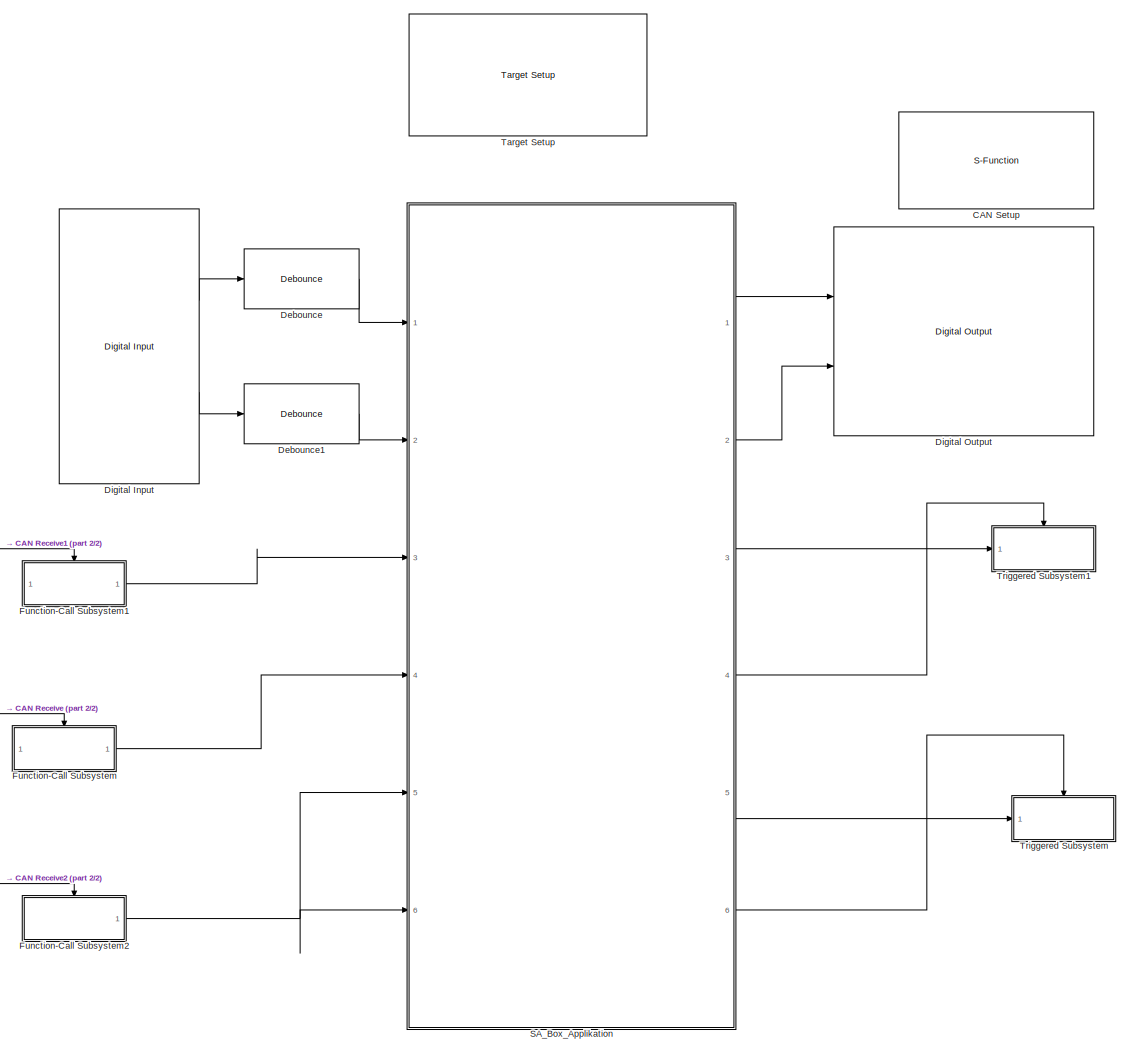
[diagram: root canvas - part 1/2, most of the canvas]
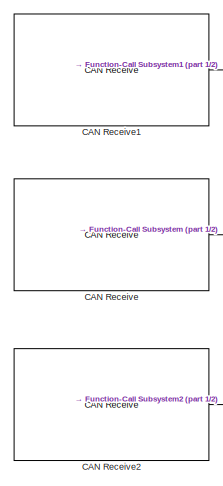
[diagram: root canvas - part 2/2, bottom left region]
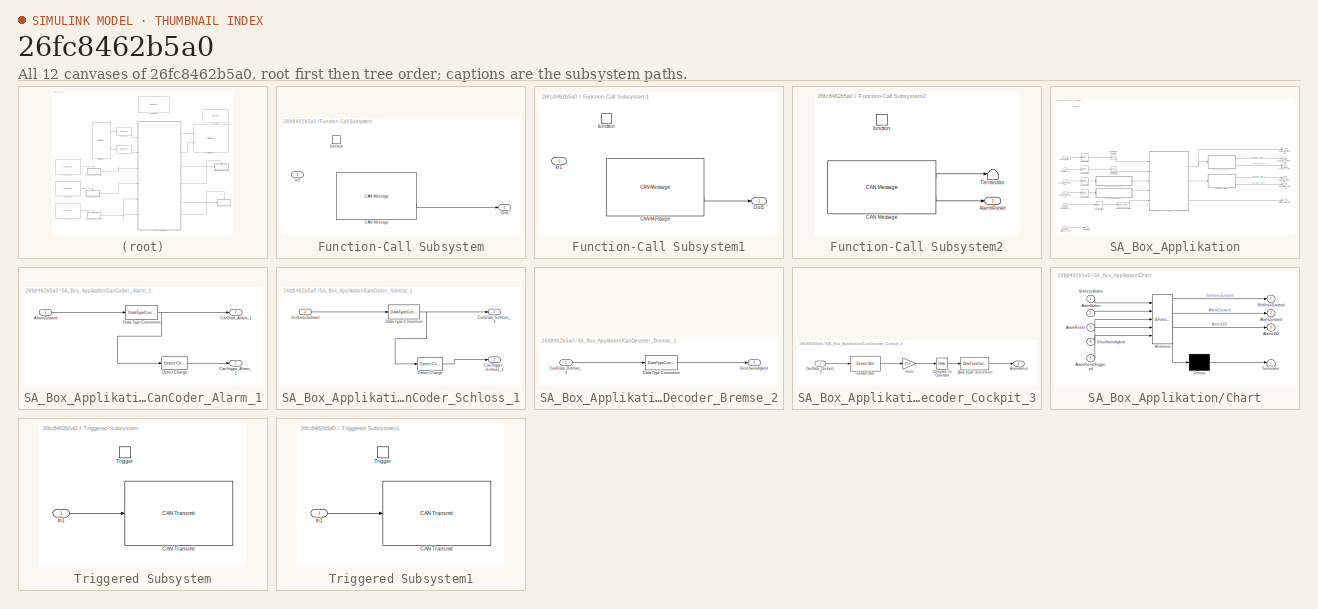
[diagram: thumbnail index - all 12 canvases of the model, root first then tree order]
MODEL slx_26fc8462b5a0
KIND model
CONFIG AbsTol = auto
CONFIG EnableMultiTasking = off
CONFIG FixedStep = auto
CONFIG MaxStep = auto
CONFIG MinStep = auto
CONFIG PreLoadFcn = waijung.modelPreload; % Required for working with Waijung Blockset. Do not remove.
CONFIG RelTol = 1e-3
CONFIG SampleTimeConstraint = Unconstrained
CONFIG Solver = FixedStepAuto
CONFIG SolverName = FixedStepAuto
CONFIG StartTime = 0.0
CONFIG StopTime = 10.0
BLOCK [Reference] CAN Receive  REF=stm32f4_canbus_lib/CAN Receive
  Ports = [0, 1]
  SourceBlock = stm32f4_canbus_lib/CAN Receive
  SourceProductName = Waijung Blockset
  SourceType = stm32f4_can
BLOCK [Reference] CAN Receive1  REF=stm32f4_canbus_lib/CAN Receive
  Ports = [0, 1]
  SourceBlock = stm32f4_canbus_lib/CAN Receive
  SourceProductName = Waijung Blockset
  SourceType = stm32f4_can
BLOCK [Reference] CAN Receive2  REF=stm32f4_canbus_lib/CAN Receive
  Ports = [0, 1]
  SourceBlock = stm32f4_canbus_lib/CAN Receive
  SourceProductName = Waijung Blockset
  SourceType = stm32f4_can
BLOCK [S-Function] CAN Setup
  EnableBusSupport = off
  FunctionName = stm32f4_can
  Parameters = conf,canmodule,0,inputarray,outputarray,'','',confstr,sampletime,sampletimestr,blockid
  Ports = []
  SFcnIsStateOwnerBlock = off
  SFunctionDeploymentMode = off
BLOCK [Reference] Debounce  REF=stm32f4_io_lib/Debounce
  Ports = [1, 1]
  SourceBlock = stm32f4_io_lib/Debounce
  SourceProductName = Waijung Blockset
BLOCK [Reference] Debounce1  REF=stm32f4_io_lib/Debounce
  Ports = [1, 1]
  SourceBlock = stm32f4_io_lib/Debounce
  SourceProductName = Waijung Blockset
BLOCK [Reference] Digital Input  REF=stm32f4_io_lib/Digital Input
  Ports = [0, 2]
  SourceBlock = stm32f4_io_lib/Digital Input
  SourceProductName = Waijung Blockset
  SourceType = stm32f4_digital_input
BLOCK [Reference] Digital Output  REF=stm32f4_io_lib/Digital Output
  Ports = [2]
  SourceBlock = stm32f4_io_lib/Digital Output
  SourceProductName = Waijung Blockset
  SourceType = stm32f4_digital_output
BLOCK [SubSystem] Function-Call Subsystem
  Ports = [1, 1, 0, 1]
  RequestExecContextInheritance = off
  TreatAsAtomicUnit = on
  Variant = off
BLOCK [Reference] Function-Call Subsystem/CAN Message  REF=stm32f4_canbus_lib/CAN Message
  Ports = [0, 2]
  SourceBlock = stm32f4_canbus_lib/CAN Message
  SourceProductName = Waijung Blockset
  SourceType = stm32f4_can
BLOCK [Inport] Function-Call Subsystem/In1
  IconDisplay = Port number
BLOCK [Outport] Function-Call Subsystem/Out1
  IconDisplay = Port number
BLOCK [TriggerPort] Function-Call Subsystem/function
  Ports = []
  StatesWhenEnabling = held
  TriggerType = function-call
  VariantControl = Variant
BLOCK [SubSystem] Function-Call Subsystem1
  Ports = [1, 1, 0, 1]
  RequestExecContextInheritance = off
  TreatAsAtomicUnit = on
  Variant = off
BLOCK [Reference] Function-Call Subsystem1/CAN Message  REF=stm32f4_canbus_lib/CAN Message
  Ports = [0, 2]
  SourceBlock = stm32f4_canbus_lib/CAN Message
  SourceProductName = Waijung Blockset
  SourceType = stm32f4_can
BLOCK [Inport] Function-Call Subsystem1/In1
  IconDisplay = Port number
BLOCK [Outport] Function-Call Subsystem1/Out1
  IconDisplay = Port number
BLOCK [TriggerPort] Function-Call Subsystem1/function
  Ports = []
  StatesWhenEnabling = held
  TriggerType = function-call
  VariantControl = Variant
BLOCK [SubSystem] Function-Call Subsystem2
  Ports = [0, 1, 0, 1]
  RequestExecContextInheritance = off
  TreatAsAtomicUnit = on
  Variant = off
BLOCK [Outport] Function-Call Subsystem2/AlarmReset
  IconDisplay = Port number
BLOCK [Reference] Function-Call Subsystem2/CAN Message  REF=stm32f4_canbus_lib/CAN Message
  Ports = [0, 2]
  SourceBlock = stm32f4_canbus_lib/CAN Message
  SourceProductName = Waijung Blockset
  SourceType = stm32f4_can
BLOCK [Terminator] Function-Call Subsystem2/Terminator
BLOCK [TriggerPort] Function-Call Subsystem2/function
  Ports = []
  StatesWhenEnabling = held
  TriggerType = function-call
  VariantControl = Variant
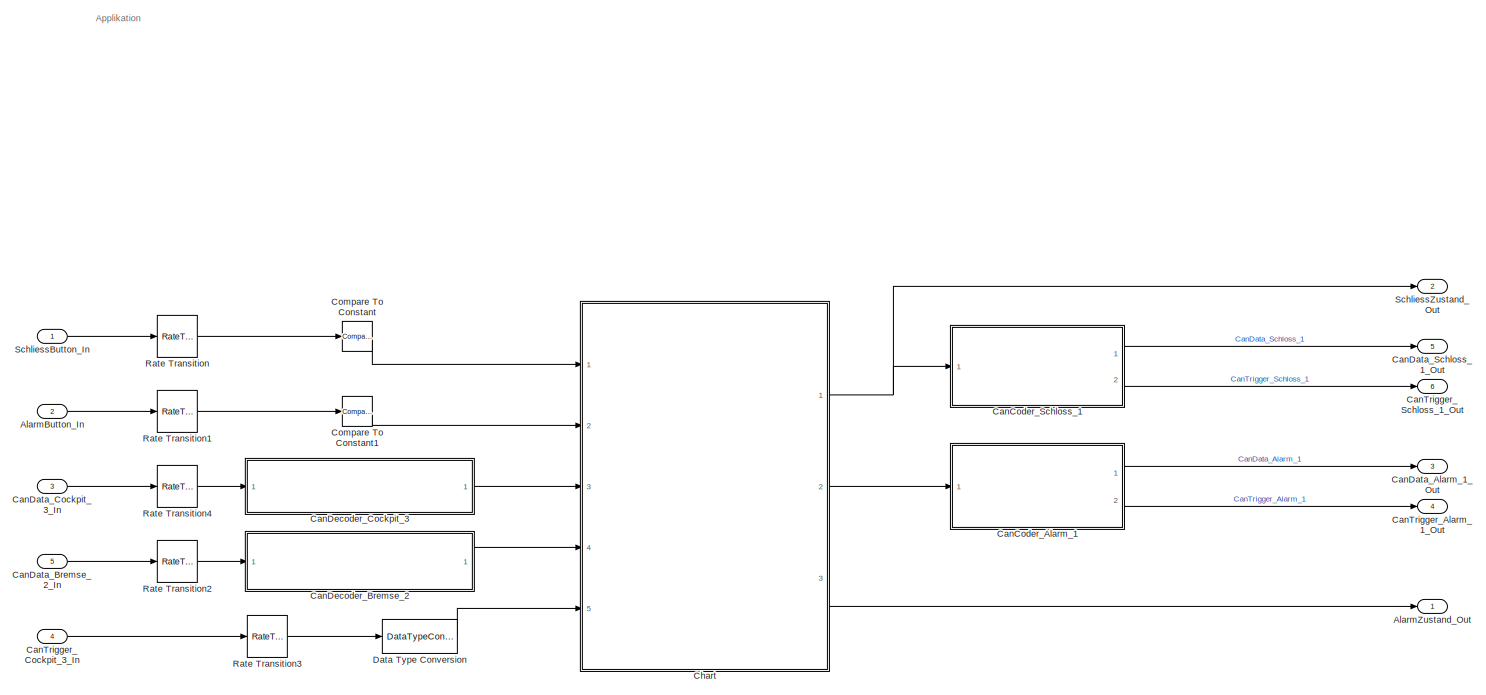
[diagram: SA_Box_Applikation - part 1/2, most of the canvas]
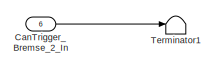
[diagram: SA_Box_Applikation - part 2/2, bottom left region]
BLOCK [SubSystem] SA_Box_Applikation
  Ports = [6, 6]
  RequestExecContextInheritance = off
  Variant = off
BLOCK [Inport] SA_Box_Applikation/AlarmButton_In
  IconDisplay = Port number
  Port = 2
BLOCK [Outport] SA_Box_Applikation/AlarmZustand_Out
  IconDisplay = Port number
BLOCK [SubSystem] SA_Box_Applikation/CanCoder_Alarm_1
  Ports = [1, 2]
  RequestExecContextInheritance = off
  Variant = off
BLOCK [Inport] SA_Box_Applikation/CanCoder_Alarm_1/AlarmZustand
  IconDisplay = Port number
BLOCK [Outport] SA_Box_Applikation/CanCoder_Alarm_1/CanData_Alarm_1
  IconDisplay = Port number
BLOCK [Outport] SA_Box_Applikation/CanCoder_Alarm_1/CanTrigger_Alarm_1
  IconDisplay = Port number
  Port = 2
BLOCK [DataTypeConversion] SA_Box_Applikation/CanCoder_Alarm_1/Data Type Conversion
  RndMeth = Floor
  SaturateOnIntegerOverflow = off
BLOCK [Reference] SA_Box_Applikation/CanCoder_Alarm_1/Detect Change  REF=simulink/Logic and Bit
Operations/Detect
Change
  Ports = [1, 1]
  SourceBlock = simulink/Logic and Bit\nOperations/Detect\nChange
  SourceProductBaseCode = SL
  SourceProductName = Simulink
  SourceType = Detect Change
BLOCK [SubSystem] SA_Box_Applikation/CanCoder_Schloss_1
  Ports = [1, 2]
  RequestExecContextInheritance = off
  Variant = off
BLOCK [Outport] SA_Box_Applikation/CanCoder_Schloss_1/CanData_Schloss_1
  IconDisplay = Port number
BLOCK [Outport] SA_Box_Applikation/CanCoder_Schloss_1/CanTrigger_Schloss_1
  IconDisplay = Port number
  Port = 2
BLOCK [DataTypeConversion] SA_Box_Applikation/CanCoder_Schloss_1/Data Type Conversion
  RndMeth = Floor
  SaturateOnIntegerOverflow = off
BLOCK [Reference] SA_Box_Applikation/CanCoder_Schloss_1/Detect Change  REF=simulink/Logic and Bit
Operations/Detect
Change
  Ports = [1, 1]
  SourceBlock = simulink/Logic and Bit\nOperations/Detect\nChange
  SourceProductBaseCode = SL
  SourceProductName = Simulink
  SourceType = Detect Change
BLOCK [Inport] SA_Box_Applikation/CanCoder_Schloss_1/SchliessZustand
  IconDisplay = Port number
BLOCK [Outport] SA_Box_Applikation/CanData_Alarm_1_Out
  IconDisplay = Port number
  Port = 3
BLOCK [Inport] SA_Box_Applikation/CanData_Bremse_2_In
  IconDisplay = Port number
  Port = 5
BLOCK [Inport] SA_Box_Applikation/CanData_Cockpit_3_In
  IconDisplay = Port number
  Port = 3
BLOCK [Outport] SA_Box_Applikation/CanData_Schloss_1_Out
  IconDisplay = Port number
  Port = 5
BLOCK [SubSystem] SA_Box_Applikation/CanDecoder_Bremse_2
  Ports = [1, 1]
  RequestExecContextInheritance = off
  Variant = off
BLOCK [Inport] SA_Box_Applikation/CanDecoder_Bremse_2/CanData_Bremse_2
  IconDisplay = Port number
BLOCK [DataTypeConversion] SA_Box_Applikation/CanDecoder_Bremse_2/Data Type Conversion
  RndMeth = Floor
  SaturateOnIntegerOverflow = off
BLOCK [Outport] SA_Box_Applikation/CanDecoder_Bremse_2/Geschwindigkeit
  IconDisplay = Port number
BLOCK [SubSystem] SA_Box_Applikation/CanDecoder_Cockpit_3
  Ports = [1, 1]
  RequestExecContextInheritance = off
  Variant = off
BLOCK [Outport] SA_Box_Applikation/CanDecoder_Cockpit_3/AlarmReset
  IconDisplay = Port number
BLOCK [Inport] SA_Box_Applikation/CanDecoder_Cockpit_3/CanData_Cockpit_3
  IconDisplay = Port number
BLOCK [Reference] SA_Box_Applikation/CanDecoder_Cockpit_3/Compare To Constant  REF=simulink/Logic and Bit
Operations/Compare
To Constant
  Ports = [1, 1]
  SourceBlock = simulink/Logic and Bit\nOperations/Compare\nTo Constant
  SourceProductBaseCode = SL
  SourceType = Compare To Constant
BLOCK [DataTypeConversion] SA_Box_Applikation/CanDecoder_Cockpit_3/Data Type Conversion
  RndMeth = Floor
  SaturateOnIntegerOverflow = off
BLOCK [Reference] SA_Box_Applikation/CanDecoder_Cockpit_3/Extract Bits  REF=simulink/Logic and Bit
Operations/Extract Bits
  Ports = [1, 1]
  SourceBlock = simulink/Logic and Bit\nOperations/Extract Bits
  SourceProductBaseCode = SL
  SourceType = Extract Bits
BLOCK [Gain] SA_Box_Applikation/CanDecoder_Cockpit_3/Gain
  Gain = 2^-0
  OutDataTypeStr = Inherit: Inherit via internal rule
  ParamDataTypeStr = Inherit: Inherit via internal rule
  SaturateOnIntegerOverflow = off
BLOCK [Outport] SA_Box_Applikation/CanTrigger_Alarm_1_Out
  IconDisplay = Port number
  Port = 4
BLOCK [Inport] SA_Box_Applikation/CanTrigger_Bremse_2_In
  IconDisplay = Port number
  Port = 6
BLOCK [Inport] SA_Box_Applikation/CanTrigger_Cockpit_3_In
  IconDisplay = Port number
  Port = 4
BLOCK [Outport] SA_Box_Applikation/CanTrigger_Schloss_1_Out
  IconDisplay = Port number
  Port = 6
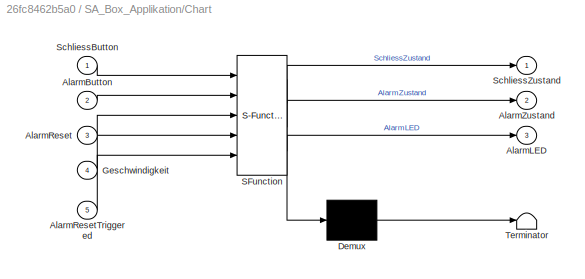
BLOCK [SubSystem] SA_Box_Applikation/Chart
  ErrorFcn = Stateflow.Translate.translate
  PermitHierarchicalResolution = ExplicitOnly
  Ports = [5, 3]
  RequestExecContextInheritance = off
  SFBlockType = Chart
  TreatAsAtomicUnit = on
  Variant = off
BLOCK [Demux] SA_Box_Applikation/Chart/ Demux 
  DisplayOption = bar
  Outputs = 1
  Ports = [1, 1]
BLOCK [S-Function] SA_Box_Applikation/Chart/ SFunction 
  EnableBusSupport = on
  FunctionName = sf_sfun
  PortCounts = [5 4]
  Ports = [5, 4]
  SFcnIsStateOwnerBlock = off
  SFunctionDeploymentMode = off
  Tag = Stateflow S-Function SchlossBoxDecodeEncode 2
BLOCK [Terminator] SA_Box_Applikation/Chart/ Terminator 
BLOCK [Inport] SA_Box_Applikation/Chart/AlarmButton
  IconDisplay = Port number
  Port = 2
BLOCK [Outport] SA_Box_Applikation/Chart/AlarmLED
  IconDisplay = Port number
  Port = 3
BLOCK [Inport] SA_Box_Applikation/Chart/AlarmReset
  IconDisplay = Port number
  Port = 3
BLOCK [Inport] SA_Box_Applikation/Chart/AlarmResetTriggered
  IconDisplay = Port number
  Port = 5
BLOCK [Outport] SA_Box_Applikation/Chart/AlarmZustand
  IconDisplay = Port number
  Port = 2
BLOCK [Inport] SA_Box_Applikation/Chart/Geschwindigkeit
  IconDisplay = Port number
  Port = 4
BLOCK [Inport] SA_Box_Applikation/Chart/SchliessButton
  IconDisplay = Port number
BLOCK [Outport] SA_Box_Applikation/Chart/SchliessZustand
  IconDisplay = Port number
BLOCK [Reference] SA_Box_Applikation/Compare To Constant  REF=simulink/Logic and Bit
Operations/Compare
To Constant
  Ports = [1, 1]
  SourceBlock = simulink/Logic and Bit\nOperations/Compare\nTo Constant
  SourceProductBaseCode = SL
  SourceProductName = Simulink
  SourceType = Compare To Constant
BLOCK [Reference] SA_Box_Applikation/Compare To Constant1  REF=simulink/Logic and Bit
Operations/Compare
To Constant
  Ports = [1, 1]
  SourceBlock = simulink/Logic and Bit\nOperations/Compare\nTo Constant
  SourceProductBaseCode = SL
  SourceProductName = Simulink
  SourceType = Compare To Constant
BLOCK [DataTypeConversion] SA_Box_Applikation/Data Type Conversion
  RndMeth = Floor
  SaturateOnIntegerOverflow = off
BLOCK [RateTransition] SA_Box_Applikation/Rate Transition
  Deterministic = off
  OutPortSampleTimeOpt = Inherit
BLOCK [RateTransition] SA_Box_Applikation/Rate Transition1
  Deterministic = off
  OutPortSampleTimeOpt = Inherit
BLOCK [RateTransition] SA_Box_Applikation/Rate Transition2
  Deterministic = off
  OutPortSampleTimeOpt = Inherit
BLOCK [RateTransition] SA_Box_Applikation/Rate Transition3
  Deterministic = off
  OutPortSampleTimeOpt = Inherit
BLOCK [RateTransition] SA_Box_Applikation/Rate Transition4
  Deterministic = off
  OutPortSampleTimeOpt = Inherit
BLOCK [Inport] SA_Box_Applikation/SchliessButton_In
  IconDisplay = Port number
BLOCK [Outport] SA_Box_Applikation/SchliessZustand_Out
  IconDisplay = Port number
  Port = 2
BLOCK [Terminator] SA_Box_Applikation/Terminator1
BLOCK [Reference] Target Setup  REF=stm32f4_device_config_lib/Target Setup
  Ports = []
  Priority = 100
  SourceBlock = stm32f4_device_config_lib/Target Setup
  SourceProductName = Waijung Blockset
  SourceType = stm32f4_target_setup
BLOCK [SubSystem] Triggered Subsystem
  Ports = [1, 0, 0, 1]
  RequestExecContextInheritance = off
  TreatAsAtomicUnit = on
  Variant = off
BLOCK [Reference] Triggered Subsystem/CAN Transmit  REF=stm32f4_canbus_lib/CAN Transmit
  Ports = [1]
  SourceBlock = stm32f4_canbus_lib/CAN Transmit
  SourceProductName = Waijung Blockset
  SourceType = stm32f4_can
BLOCK [Inport] Triggered Subsystem/In1
  IconDisplay = Port number
BLOCK [TriggerPort] Triggered Subsystem/Trigger
  Ports = []
  StatesWhenEnabling = held
  VariantControl = Variant
BLOCK [SubSystem] Triggered Subsystem1
  Ports = [1, 0, 0, 1]
  RequestExecContextInheritance = off
  TreatAsAtomicUnit = on
  Variant = off
BLOCK [Reference] Triggered Subsystem1/CAN Transmit  REF=stm32f4_canbus_lib/CAN Transmit
  Ports = [1]
  SourceBlock = stm32f4_canbus_lib/CAN Transmit
  SourceProductName = Waijung Blockset
  SourceType = stm32f4_can
BLOCK [Inport] Triggered Subsystem1/In1
  IconDisplay = Port number
BLOCK [TriggerPort] Triggered Subsystem1/Trigger
  Ports = []
  StatesWhenEnabling = held
  VariantControl = Variant
ANNOTATION SA_Box_Applikation: Applikation
LINE CAN Receive1:1 -> Function-Call Subsystem1:trigger
LINE CAN Receive2:1 -> Function-Call Subsystem2:trigger
LINE CAN Receive:1 -> Function-Call Subsystem:trigger
LINE Debounce1:1 -> SA_Box_Applikation:2
LINE Debounce:1 -> SA_Box_Applikation:1
LINE Digital Input:1 -> Debounce:1
LINE Digital Input:2 -> Debounce1:1
LINE Function-Call Subsystem/CAN Message:2 -> Function-Call Subsystem/Out1:1
LINE Function-Call Subsystem1/CAN Message:2 -> Function-Call Subsystem1/Out1:1
LINE Function-Call Subsystem1:1 -> SA_Box_Applikation:3
LINE Function-Call Subsystem2/CAN Message:1 -> Function-Call Subsystem2/Terminator:1
LINE Function-Call Subsystem2/CAN Message:2 -> Function-Call Subsystem2/AlarmReset:1
NET Function-Call Subsystem2:1 -> SA_Box_Applikation:5, SA_Box_Applikation:6
LINE Function-Call Subsystem:1 -> SA_Box_Applikation:4
LINE SA_Box_Applikation/AlarmButton_In:1 -> SA_Box_Applikation/Rate Transition1:1
LINE SA_Box_Applikation/CanCoder_Alarm_1/AlarmZustand:1 -> SA_Box_Applikation/CanCoder_Alarm_1/Data Type Conversion:1
NET SA_Box_Applikation/CanCoder_Alarm_1/Data Type Conversion:1 -> SA_Box_Applikation/CanCoder_Alarm_1/CanData_Alarm_1:1, SA_Box_Applikation/CanCoder_Alarm_1/Detect Change:1
LINE SA_Box_Applikation/CanCoder_Alarm_1/Detect Change:1 -> SA_Box_Applikation/CanCoder_Alarm_1/CanTrigger_Alarm_1:1
LINE SA_Box_Applikation/CanCoder_Alarm_1:1 -> SA_Box_Applikation/CanData_Alarm_1_Out:1
LINE SA_Box_Applikation/CanCoder_Alarm_1:2 -> SA_Box_Applikation/CanTrigger_Alarm_1_Out:1
NET SA_Box_Applikation/CanCoder_Schloss_1/Data Type Conversion:1 -> SA_Box_Applikation/CanCoder_Schloss_1/CanData_Schloss_1:1, SA_Box_Applikation/CanCoder_Schloss_1/Detect Change:1
LINE SA_Box_Applikation/CanCoder_Schloss_1/Detect Change:1 -> SA_Box_Applikation/CanCoder_Schloss_1/CanTrigger_Schloss_1:1
LINE SA_Box_Applikation/CanCoder_Schloss_1/SchliessZustand:1 -> SA_Box_Applikation/CanCoder_Schloss_1/Data Type Conversion:1
LINE SA_Box_Applikation/CanCoder_Schloss_1:1 -> SA_Box_Applikation/CanData_Schloss_1_Out:1
LINE SA_Box_Applikation/CanCoder_Schloss_1:2 -> SA_Box_Applikation/CanTrigger_Schloss_1_Out:1
LINE SA_Box_Applikation/CanData_Bremse_2_In:1 -> SA_Box_Applikation/Rate Transition2:1
LINE SA_Box_Applikation/CanData_Cockpit_3_In:1 -> SA_Box_Applikation/Rate Transition4:1
LINE SA_Box_Applikation/CanDecoder_Bremse_2/CanData_Bremse_2:1 -> SA_Box_Applikation/CanDecoder_Bremse_2/Data Type Conversion:1
LINE SA_Box_Applikation/CanDecoder_Bremse_2/Data Type Conversion:1 -> SA_Box_Applikation/CanDecoder_Bremse_2/Geschwindigkeit:1
LINE SA_Box_Applikation/CanDecoder_Bremse_2:1 -> SA_Box_Applikation/Chart:4
LINE SA_Box_Applikation/CanDecoder_Cockpit_3/CanData_Cockpit_3:1 -> SA_Box_Applikation/CanDecoder_Cockpit_3/Extract Bits:1
LINE SA_Box_Applikation/CanDecoder_Cockpit_3/Compare To Constant:1 -> SA_Box_Applikation/CanDecoder_Cockpit_3/Data Type Conversion:1
LINE SA_Box_Applikation/CanDecoder_Cockpit_3/Data Type Conversion:1 -> SA_Box_Applikation/CanDecoder_Cockpit_3/AlarmReset:1
LINE SA_Box_Applikation/CanDecoder_Cockpit_3/Extract Bits:1 -> SA_Box_Applikation/CanDecoder_Cockpit_3/Gain:1
LINE SA_Box_Applikation/CanDecoder_Cockpit_3/Gain:1 -> SA_Box_Applikation/CanDecoder_Cockpit_3/Compare To Constant:1
LINE SA_Box_Applikation/CanDecoder_Cockpit_3:1 -> SA_Box_Applikation/Chart:3
LINE SA_Box_Applikation/CanTrigger_Bremse_2_In:1 -> SA_Box_Applikation/Terminator1:1
LINE SA_Box_Applikation/CanTrigger_Cockpit_3_In:1 -> SA_Box_Applikation/Rate Transition3:1
NET SA_Box_Applikation/Chart:1 -> SA_Box_Applikation/CanCoder_Schloss_1:1, SA_Box_Applikation/SchliessZustand_Out:1
LINE SA_Box_Applikation/Chart:2 -> SA_Box_Applikation/CanCoder_Alarm_1:1
LINE SA_Box_Applikation/Chart:3 -> SA_Box_Applikation/AlarmZustand_Out:1
LINE SA_Box_Applikation/Compare To Constant1:1 -> SA_Box_Applikation/Chart:2
LINE SA_Box_Applikation/Compare To Constant:1 -> SA_Box_Applikation/Chart:1
LINE SA_Box_Applikation/Data Type Conversion:1 -> SA_Box_Applikation/Chart:5
LINE SA_Box_Applikation/Rate Transition1:1 -> SA_Box_Applikation/Compare To Constant1:1
LINE SA_Box_Applikation/Rate Transition2:1 -> SA_Box_Applikation/CanDecoder_Bremse_2:1
LINE SA_Box_Applikation/Rate Transition3:1 -> SA_Box_Applikation/Data Type Conversion:1
LINE SA_Box_Applikation/Rate Transition4:1 -> SA_Box_Applikation/CanDecoder_Cockpit_3:1
LINE SA_Box_Applikation/Rate Transition:1 -> SA_Box_Applikation/Compare To Constant:1
LINE SA_Box_Applikation/SchliessButton_In:1 -> SA_Box_Applikation/Rate Transition:1
LINE SA_Box_Applikation:1 -> Digital Output:1
LINE SA_Box_Applikation:2 -> Digital Output:2
LINE SA_Box_Applikation:3 -> Triggered Subsystem1:1
LINE SA_Box_Applikation:4 -> Triggered Subsystem1:trigger
LINE SA_Box_Applikation:5 -> Triggered Subsystem:1
LINE SA_Box_Applikation:6 -> Triggered Subsystem:trigger
LINE Triggered Subsystem/In1:1 -> Triggered Subsystem/CAN Transmit:1
LINE Triggered Subsystem1/In1:1 -> Triggered Subsystem1/CAN Transmit:1
note: NET lines group one-source signal fan-out (src -> all destinations, sorted); 1:1 wires keep LINE
CHART SA_Box_Applikation/Chart states=0 transitions=0
